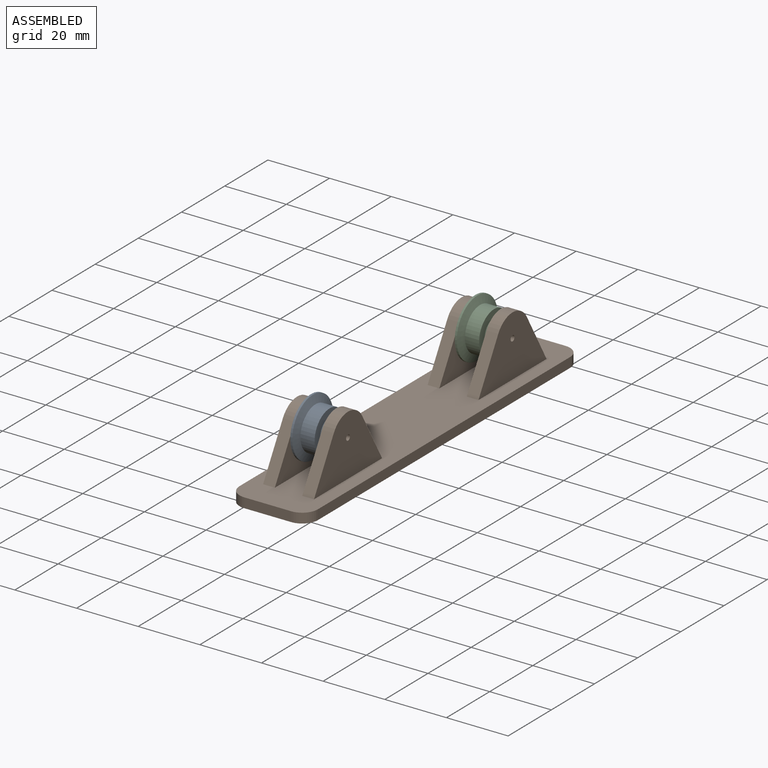
[diagram: assembled view]
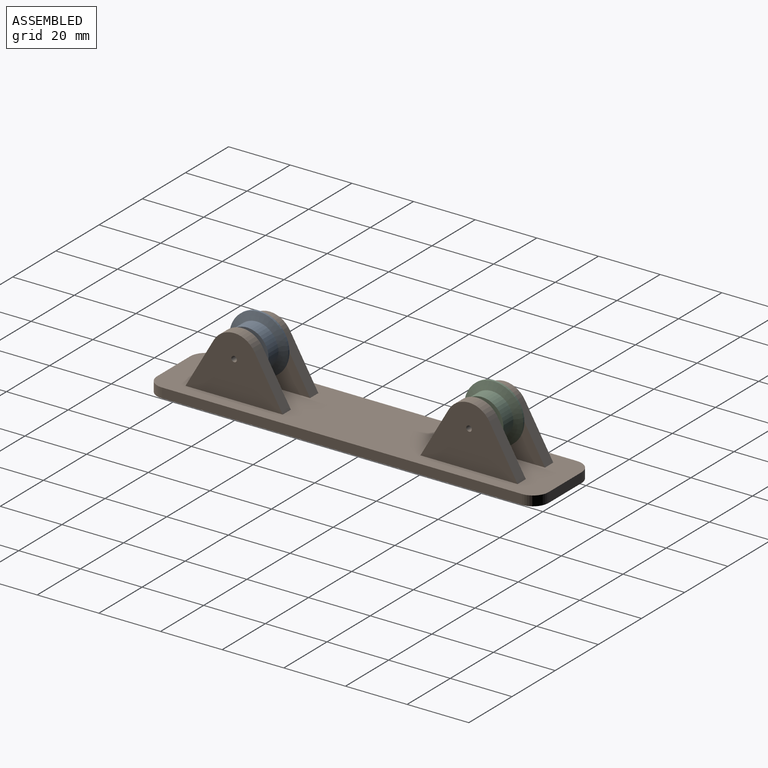
[diagram: assembled view, second angle]
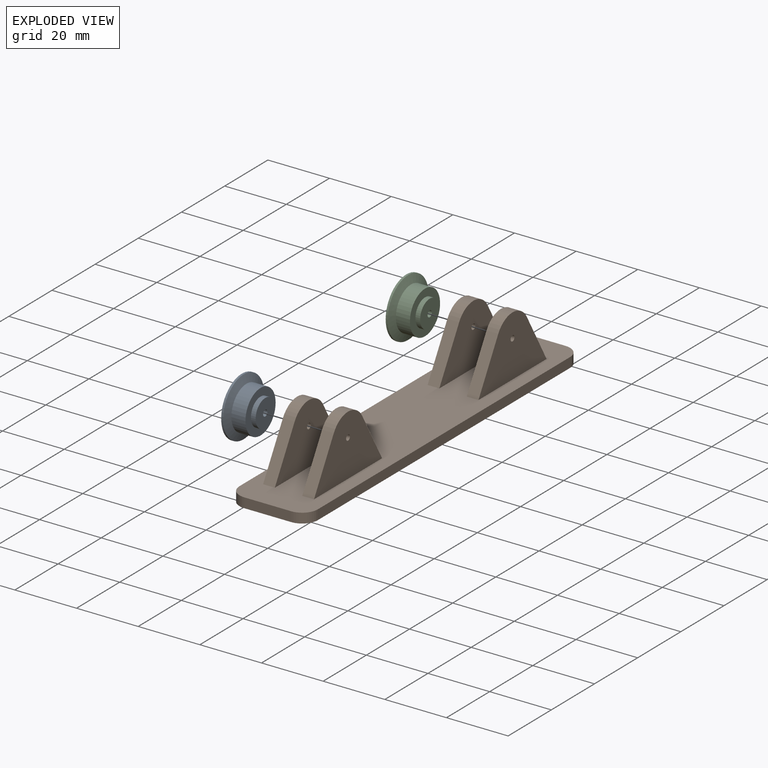
[diagram: exploded view]
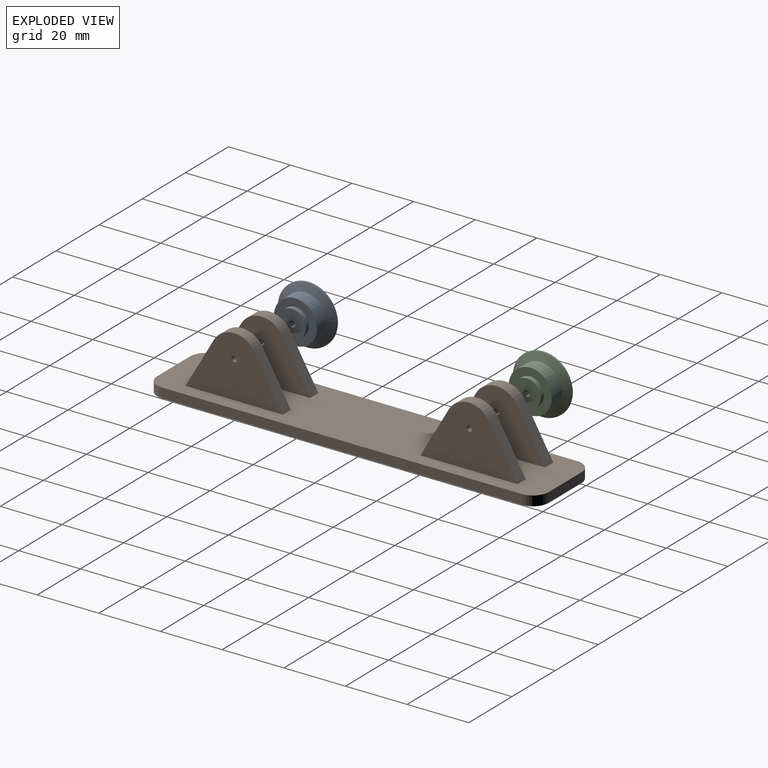
[diagram: exploded view, second angle]
ASSEMBLY  parts=3 mates=2
PART A: 8 faces, bbox 19.1x7.6x19.1 mm
  f0: plane 8.89x8.89mm, normal (0,1,0), area 58.9mm2, adj f5,f7
  f1: cylinder r=9.53mm len=19.05mm, axis (0,1,0), area 38mm2, adj f2,f3
  f2: plane 19.05x19.05mm, normal (0,-1,0), area 281.9mm2, adj f1,f5
  f3: cone r=9.53mm half-angle=70.7deg, axis (0,-1,0), area 139.6mm2, adj f1,f4
  f4: cylinder r=6.99mm len=13.97mm, axis (0,1,0), area 200.7mm2, adj f3,f6
  f5: cylinder r=1mm len=7.62mm, axis (0,1,0), area 47.9mm2, adj f0,f2
  f6: plane 13.97x13.97mm, normal (0,1,0), area 91.2mm2, adj f4,f7
  f7: cylinder r=4.45mm len=8.89mm, axis (0,1,0), area 42.6mm2, adj f0,f6
PART B: 34 faces, bbox 25.4x127x22.9 mm
  f0: plane 15.88x9.17mm, normal (0,0.87,0.5), area 69.8mm2, adj f2,f10,f25,f26
  f1: plane 15.88x9.17mm, normal (0,-0.87,0.5), area 69.8mm2, adj f2,f10,f25,f26
  f2: cylinder r=7.62mm len=13.2mm, axis (-1,0,0), area 60.8mm2, adj f0,f1,f25,f26
  f3: plane 15.88x9.17mm, normal (0,0.87,0.5), area 69.8mm2, adj f5,f10,f16,f17
  f4: plane 15.88x9.17mm, normal (0,-0.87,0.5), area 69.8mm2, adj f5,f10,f16,f17
  f5: cylinder r=7.62mm len=13.2mm, axis (-1,0,0), area 60.8mm2, adj f3,f4,f16,f17
  f6: plane 116.84x3.18mm, normal (1,0,0), area 371mm2, adj f10,f11,f30,f33
  f7: plane 15.24x3.18mm, normal (0,1,0), area 48.4mm2, adj f10,f11,f30,f31
  f8: plane 116.84x3.18mm, normal (-1,0,0), area 371mm2, adj f10,f11,f31,f32
  f9: plane 15.24x3.18mm, normal (0,-1,0), area 48.4mm2, adj f10,f11,f32,f33
  f10: plane 127x25.4mm, normal (0,0,1), area 2723.1mm2, adj f0,f1,f3,f4,f6,f7,f8,f9
  f11: plane 127x25.4mm, normal (0,0,-1), area 3203.6mm2, adj f6,f7,f8,f9,f30,f31,f32,f33
  f12: plane 15.88x9.17mm, normal (0,0.87,0.5), area 69.8mm2, adj f10,f13,f15,f18
  f13: cylinder r=7.62mm len=13.2mm, axis (-1,0,0), area 60.8mm2, adj f12,f14,f15,f18
  f14: plane 15.88x9.17mm, normal (0,-0.87,0.5), area 69.8mm2, adj f10,f13,f15,f18
  f15: plane 31.53x19.69mm, normal (1,0,0), area 388.1mm2, adj f10,f12,f13,f14,f19
  f16: plane 31.53x19.69mm, normal (-1,0,0), area 388.1mm2, adj f3,f4,f5,f10,f20
  f17: plane 31.53x19.69mm, normal (1,0,0), area 388.1mm2, adj f3,f4,f5,f10,f20
  f18: plane 31.53x19.69mm, normal (-1,0,0), area 388.1mm2, adj f10,f12,f13,f14,f19
  f19: cylinder r=0.9mm len=3.81mm, axis (1,0,0), area 21.5mm2, adj f15,f18
  f20: cylinder r=0.9mm len=3.81mm, axis (1,0,0), area 21.5mm2, adj f16,f17
  f21: plane 15.88x9.17mm, normal (0,0.87,0.5), area 69.8mm2, adj f10,f22,f24,f27
  f22: cylinder r=7.62mm len=13.2mm, axis (-1,0,0), area 60.8mm2, adj f21,f23,f24,f27
  f23: plane 15.88x9.17mm, normal (0,-0.87,0.5), area 69.8mm2, adj f10,f22,f24,f27
  f24: plane 31.53x19.69mm, normal (1,0,0), area 388.1mm2, adj f10,f21,f22,f23,f28
  f25: plane 31.53x19.69mm, normal (-1,0,0), area 388.1mm2, adj f0,f1,f2,f10,f29
  f26: plane 31.53x19.69mm, normal (1,0,0), area 388.1mm2, adj f0,f1,f2,f10,f29
  f27: plane 31.53x19.69mm, normal (-1,0,0), area 388.1mm2, adj f10,f21,f22,f23,f28
  f28: cylinder r=0.9mm len=3.81mm, axis (1,0,0), area 21.5mm2, adj f24,f27
  f29: cylinder r=0.9mm len=3.81mm, axis (1,0,0), area 21.5mm2, adj f25,f26
  f30: cylinder r=5.08mm len=5.08mm, axis (0,0,1), area 25.3mm2, adj f6,f7,f10,f11
  f31: cylinder r=5.08mm len=5.08mm, axis (0,0,-1), area 25.3mm2, adj f7,f8,f10,f11
  f32: cylinder r=5.08mm len=5.08mm, axis (0,0,1), area 25.3mm2, adj f8,f9,f10,f11
  f33: cylinder r=5.08mm len=5.08mm, axis (0,0,-1), area 25.3mm2, adj f6,f9,f10,f11
PART C: same geometry as A
PLACE A rot(axis=(0.71,0.71,-0.02),177.6deg) t=(-9.49,-41.01,21.72)mm
PLACE B t=(-9.49,-2.91,6.48)mm fixed
PLACE C rot(axis=(0.71,0.71,0),180deg) t=(-9.49,35.19,21.72)mm
MATE revolute A.f5 <-> B.f5  axis (1,0,0) through (-9.49,-41.01,21.72)mm
MATE revolute C.f5 <-> B.f2  axis (1,0,0) through (-9.49,35.19,21.72)mm
